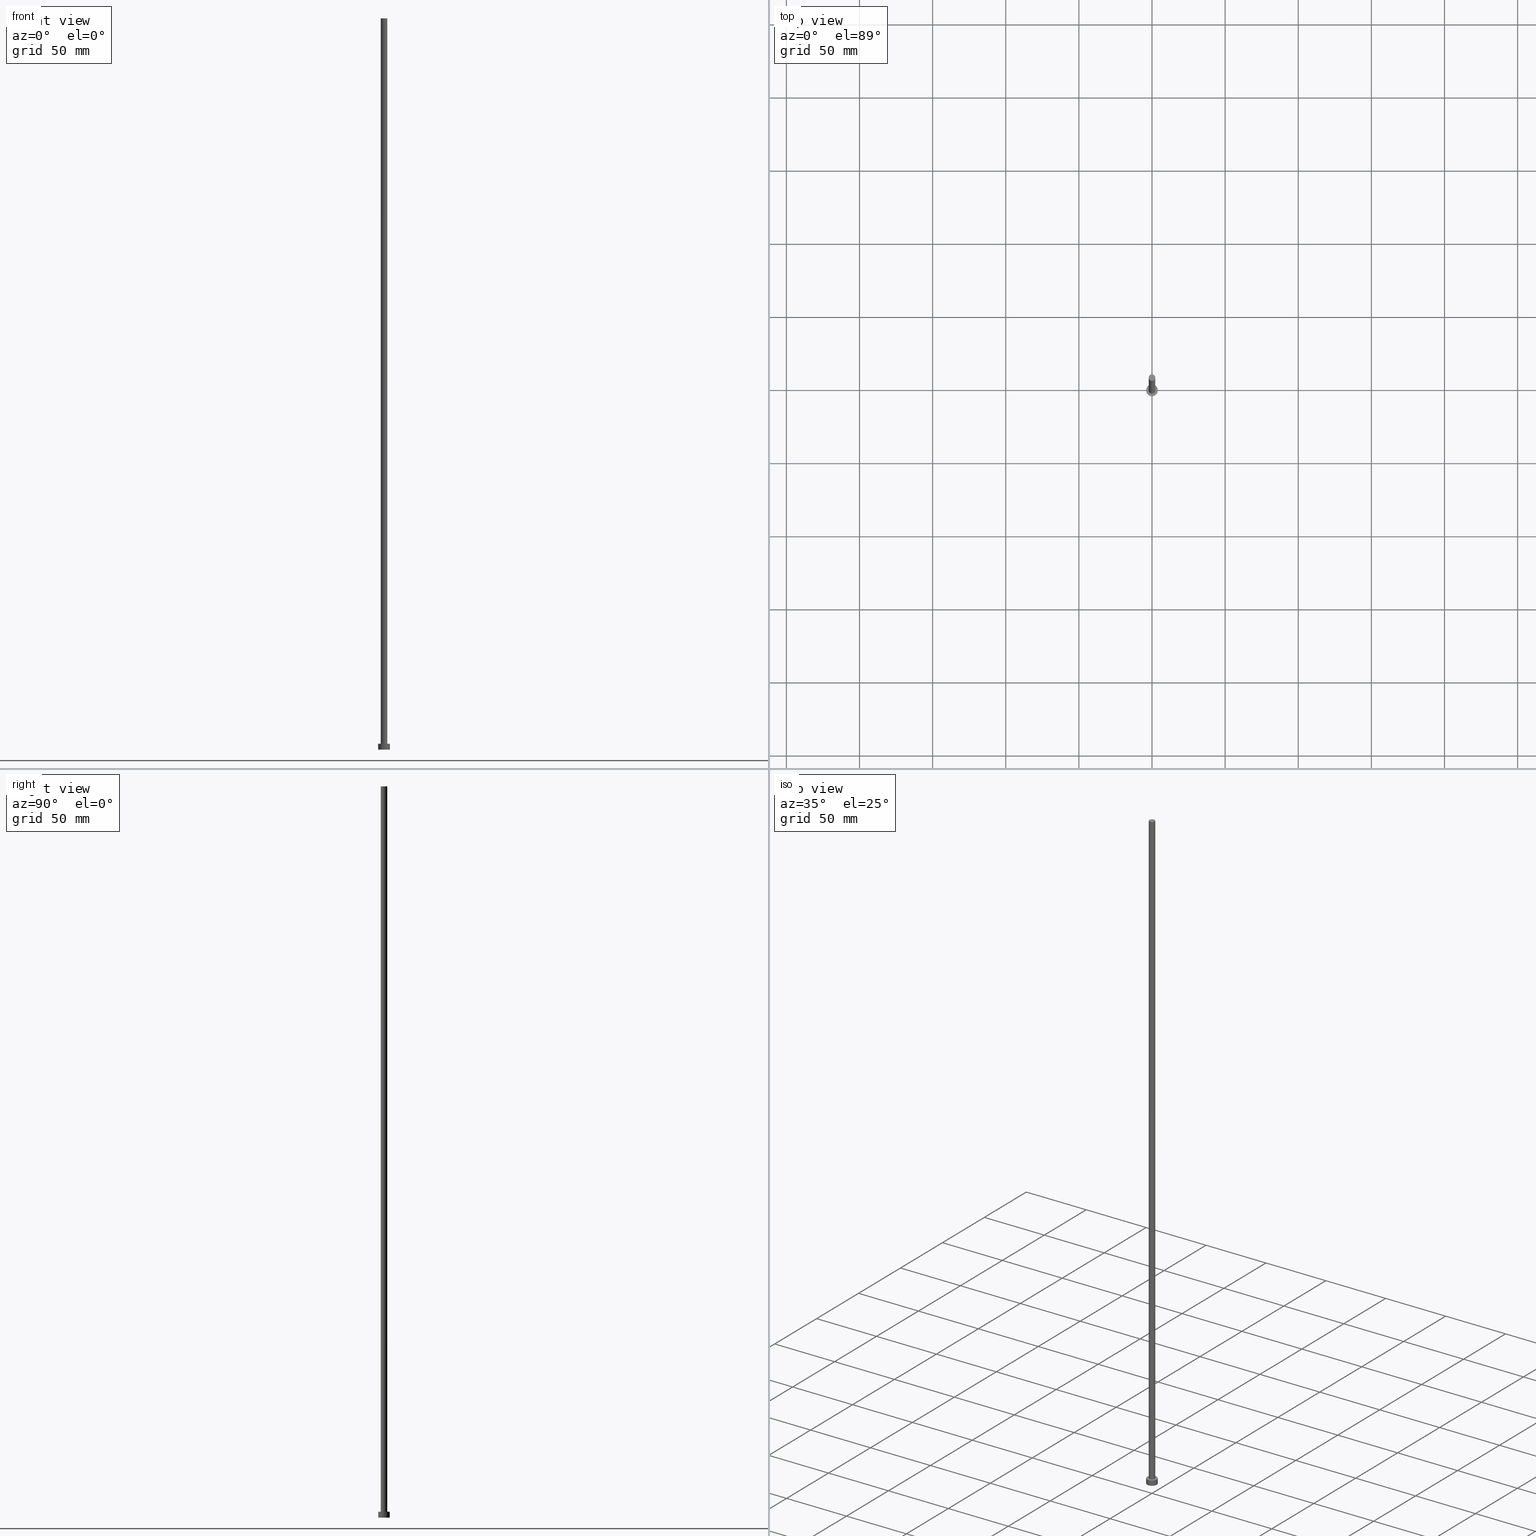
[diagram: canonical four-view strip — front | top / right | iso, engineering-drawing reading convention]
A machine part, canonical four-view strip (front | top / right | iso — engineering-drawing reading convention). The complete STEP part file that produces these views, byte-faithful:
ISO-10303-21;
HEADER;
FILE_DESCRIPTION (( 'STEP AP203' ),
    '1' );
FILE_NAME ('abeb.STEP',
    '2023-02-13T16:19:40',
    ( '' ),
    ( '' ),
    'SwSTEP 2.0',
    'SolidWorks 2019',
    '' );
FILE_SCHEMA (( 'CONFIG_CONTROL_DESIGN' ));
ENDSEC;

DATA;
#1 = CARTESIAN_POINT ( 'NONE',  ( 2.250000000000000000, 2.755455298081544285E-16, 500.0000000000000000 ) ) ;
#2 = DIRECTION ( 'NONE',  ( 1.000000000000000000, 0.000000000000000000, -0.000000000000000000 ) ) ;
#3 = CARTESIAN_POINT ( 'NONE',  ( -4.000000000000000000, 0.000000000000000000, 4.000000000000000000 ) ) ;
#4 = CIRCLE ( 'NONE', #37, 4.000000000000000000 ) ;
#5 = FACE_OUTER_BOUND ( 'NONE', #226, .T. ) ;
#6 = EDGE_CURVE ( 'NONE', #28, #130, #111, .T. ) ;
#7 = VERTEX_POINT ( 'NONE', #132 ) ;
#8 = LOCAL_TIME ( 17, 19, 40.00000000000000000, #112 ) ;
#9 = ORIENTED_EDGE ( 'NONE', *, *, #233, .T. ) ;
#10 = ORIENTED_EDGE ( 'NONE', *, *, #6, .T. ) ;
#11 = DIRECTION ( 'NONE',  ( 1.000000000000000000, 0.000000000000000000, 0.000000000000000000 ) ) ;
#12 = EDGE_CURVE ( 'NONE', #50, #134, #251, .T. ) ;
#13 = APPROVAL_STATUS ( 'not_yet_approved' ) ;
#14 = PRODUCT_DEFINITION ( 'NEZN�M�', '', #123, #249 ) ;
#15 = SHAPE_DEFINITION_REPRESENTATION ( #93, #69 ) ;
#16 = PERSON_AND_ORGANIZATION ( #156, #39 ) ;
#17 = DIRECTION ( 'NONE',  ( 1.000000000000000000, 0.000000000000000000, 0.000000000000000000 ) ) ;
#18 = CIRCLE ( 'NONE', #151, 4.000000000000000000 ) ;
#19 = DATE_AND_TIME ( #97, #168 ) ;
#20 = APPLICATION_CONTEXT ( 'configuration controlled 3d designs of mechanical parts and assemblies' ) ;
#21 = DATE_AND_TIME ( #155, #197 ) ;
#22 = CARTESIAN_POINT ( 'NONE',  ( 0.000000000000000000, 0.000000000000000000, 0.000000000000000000 ) ) ;
#23 = EDGE_CURVE ( 'NONE', #130, #134, #189, .T. ) ;
#24 = DIRECTION ( 'NONE',  ( 0.000000000000000000, 0.000000000000000000, 1.000000000000000000 ) ) ;
#25 = DIRECTION ( 'NONE',  ( -0.000000000000000000, -0.000000000000000000, -1.000000000000000000 ) ) ;
#26 = FACE_OUTER_BOUND ( 'NONE', #146, .T. ) ;
#27 = CARTESIAN_POINT ( 'NONE',  ( 2.250000000000000000, 2.755455298081544285E-16, 4.000000000000000000 ) ) ;
#28 = VERTEX_POINT ( 'NONE', #193 ) ;
#29 = EDGE_LOOP ( 'NONE', ( #202, #53, #62, #48 ) ) ;
#30 = ORIENTED_EDGE ( 'NONE', *, *, #216, .F. ) ;
#31 = VECTOR ( 'NONE', #238, 1000.000000000000000 ) ;
#32 = APPLICATION_PROTOCOL_DEFINITION ( 'international standard', 'config_control_design', 1994, #20 ) ;
#33 = DIRECTION ( 'NONE',  ( 1.000000000000000000, 0.000000000000000000, 0.000000000000000000 ) ) ;
#34 = PERSON_AND_ORGANIZATION ( #156, #39 ) ;
#35 = DIRECTION ( 'NONE',  ( 0.000000000000000000, 0.000000000000000000, 1.000000000000000000 ) ) ;
#36 = AXIS2_PLACEMENT_3D ( 'NONE', #220, #25, #67 ) ;
#37 = AXIS2_PLACEMENT_3D ( 'NONE', #162, #142, #66 ) ;
#38 = CARTESIAN_POINT ( 'NONE',  ( -2.250000000000000000, 0.000000000000000000, 4.000000000000000000 ) ) ;
#39 = ORGANIZATION ( 'NEUR�EN�', 'NEUR�EN�', '' ) ;
#40 = CARTESIAN_POINT ( 'NONE',  ( -4.000000000000000000, 0.000000000000000000, 4.000000000000000000 ) ) ;
#41 = APPROVAL_PERSON_ORGANIZATION ( #16, #73, #58 ) ;
#42 = CYLINDRICAL_SURFACE ( 'NONE', #36, 4.000000000000000000 ) ;
#43 = PRODUCT_RELATED_PRODUCT_CATEGORY ( 'detail', '', ( #186 ) ) ;
#44 = DIRECTION ( 'NONE',  ( -0.000000000000000000, -0.000000000000000000, -1.000000000000000000 ) ) ;
#45 = EDGE_CURVE ( 'NONE', #46, #7, #56, .T. ) ;
#46 = VERTEX_POINT ( 'NONE', #75 ) ;
#47 = UNCERTAINTY_MEASURE_WITH_UNIT (LENGTH_MEASURE( 1.000000000000000082E-05 ), #165, 'distance_accuracy_value', 'NONE');
#48 = ORIENTED_EDGE ( 'NONE', *, *, #45, .T. ) ;
#49 = VECTOR ( 'NONE', #218, 1000.000000000000000 ) ;
#50 = VERTEX_POINT ( 'NONE', #38 ) ;
#51 = EDGE_CURVE ( 'NONE', #145, #217, #18, .T. ) ;
#52 = ORIENTED_EDGE ( 'NONE', *, *, #144, .F. ) ;
#53 = ORIENTED_EDGE ( 'NONE', *, *, #51, .F. ) ;
#54 = DATE_TIME_ROLE ( 'creation_date' ) ;
#55 = EDGE_LOOP ( 'NONE', ( #90, #52 ) ) ;
#56 = CIRCLE ( 'NONE', #135, 4.000000000000000000 ) ;
#57 = APPROVAL_PERSON_ORGANIZATION ( #152, #221, #237 ) ;
#58 = APPROVAL_ROLE ( '' ) ;
#59 = DIRECTION ( 'NONE',  ( 0.000000000000000000, 0.000000000000000000, 1.000000000000000000 ) ) ;
#60 = CALENDAR_DATE ( 2023, 13, 2 ) ;
#61 = DATE_AND_TIME ( #208, #81 ) ;
#62 = ORIENTED_EDGE ( 'NONE', *, *, #214, .T. ) ;
#63 = CARTESIAN_POINT ( 'NONE',  ( 0.000000000000000000, 0.000000000000000000, 4.000000000000000000 ) ) ;
#64 = DIRECTION ( 'NONE',  ( -1.000000000000000000, 0.000000000000000000, 0.000000000000000000 ) ) ;
#65 = DIRECTION ( 'NONE',  ( 1.000000000000000000, 0.000000000000000000, -0.000000000000000000 ) ) ;
#66 = DIRECTION ( 'NONE',  ( 1.000000000000000000, 0.000000000000000000, 0.000000000000000000 ) ) ;
#67 = DIRECTION ( 'NONE',  ( -1.000000000000000000, 0.000000000000000000, 0.000000000000000000 ) ) ;
#68 = EDGE_LOOP ( 'NONE', ( #10, #9 ) ) ;
#69 = ADVANCED_BREP_SHAPE_REPRESENTATION ( 'abeb', ( #184, #86 ), #108 ) ;
#70 = ORIENTED_EDGE ( 'NONE', *, *, #87, .F. ) ;
#71 = PERSON_AND_ORGANIZATION ( #156, #39 ) ;
#72 = PERSON_AND_ORGANIZATION ( #156, #39 ) ;
#73 = APPROVAL ( #131, 'NEUR�EN�' ) ;
#74 = APPROVAL_DATE_TIME ( #252, #235 ) ;
#75 = CARTESIAN_POINT ( 'NONE',  ( -4.000000000000000000, 0.000000000000000000, 0.000000000000000000 ) ) ;
#76 = CLOSED_SHELL ( 'NONE', ( #177, #106, #129, #169, #114, #219, #201 ) ) ;
#77 = FACE_BOUND ( 'NONE', #55, .T. ) ;
#78 = DIRECTION ( 'NONE',  ( 0.000000000000000000, 0.000000000000000000, 1.000000000000000000 ) ) ;
#79 = DIRECTION ( 'NONE',  ( -0.000000000000000000, -0.000000000000000000, -1.000000000000000000 ) ) ;
#80 = AXIS2_PLACEMENT_3D ( 'NONE', #240, #174, #65 ) ;
#81 = LOCAL_TIME ( 17, 19, 40.00000000000000000, #188 ) ;
#82 = LINE ( 'NONE', #122, #49 ) ;
#83 = MECHANICAL_CONTEXT ( 'NONE', #205, 'mechanical' ) ;
#84 = DIRECTION ( 'NONE',  ( 1.000000000000000000, 0.000000000000000000, 0.000000000000000000 ) ) ;
#85 = ORIENTED_EDGE ( 'NONE', *, *, #144, .T. ) ;
#86 = AXIS2_PLACEMENT_3D ( 'NONE', #182, #89, #84 ) ;
#87 = EDGE_CURVE ( 'NONE', #7, #46, #195, .T. ) ;
#88 = ORIENTED_EDGE ( 'NONE', *, *, #214, .F. ) ;
#89 = DIRECTION ( 'NONE',  ( 0.000000000000000000, 0.000000000000000000, 1.000000000000000000 ) ) ;
#90 = ORIENTED_EDGE ( 'NONE', *, *, #12, .F. ) ;
#91 =( NAMED_UNIT ( * ) PLANE_ANGLE_UNIT ( ) SI_UNIT ( $, .RADIAN. ) );
#92 = CC_DESIGN_APPROVAL ( #73, ( #187 ) ) ;
#93 = PRODUCT_DEFINITION_SHAPE ( 'NONE', 'NONE',  #14 ) ;
#94 = CC_DESIGN_DATE_AND_TIME_ASSIGNMENT ( #21, #250, ( #187 ) ) ;
#95 = COORDINATED_UNIVERSAL_TIME_OFFSET ( 1, 0, .AHEAD. ) ;
#96 = CARTESIAN_POINT ( 'NONE',  ( 2.250000000000000000, 2.755455298081544285E-16, 500.0000000000000000 ) ) ;
#97 = CALENDAR_DATE ( 2023, 13, 2 ) ;
#98 = CARTESIAN_POINT ( 'NONE',  ( 0.000000000000000000, 0.000000000000000000, 500.0000000000000000 ) ) ;
#99 = CC_DESIGN_PERSON_AND_ORGANIZATION_ASSIGNMENT ( #34, #115, ( #187 ) ) ;
#100 = DIRECTION ( 'NONE',  ( 0.000000000000000000, 0.000000000000000000, 1.000000000000000000 ) ) ;
#101 = EDGE_CURVE ( 'NONE', #28, #50, #82, .T. ) ;
#102 = PLANE ( 'NONE',  #80 ) ;
#103 = DIRECTION ( 'NONE',  ( 1.000000000000000000, 0.000000000000000000, 0.000000000000000000 ) ) ;
#104 = DIRECTION ( 'NONE',  ( -1.000000000000000000, 0.000000000000000000, 0.000000000000000000 ) ) ;
#105 = LINE ( 'NONE', #173, #228 ) ;
#106 = ADVANCED_FACE ( 'NONE', ( #199 ), #194, .T. ) ;
#107 = PERSON_AND_ORGANIZATION ( #156, #39 ) ;
#108 =( GEOMETRIC_REPRESENTATION_CONTEXT ( 3 ) GLOBAL_UNCERTAINTY_ASSIGNED_CONTEXT ( ( #47 ) ) GLOBAL_UNIT_ASSIGNED_CONTEXT ( ( #165, #91, #167 ) ) REPRESENTATION_CONTEXT ( 'NONE', 'WORKASPACE' ) );
#109 = CC_DESIGN_PERSON_AND_ORGANIZATION_ASSIGNMENT ( #72, #232, ( #14 ) ) ;
#110 = PERSON_AND_ORGANIZATION_ROLE ( 'creator' ) ;
#111 = CIRCLE ( 'NONE', #255, 2.250000000000000000 ) ;
#112 = COORDINATED_UNIVERSAL_TIME_OFFSET ( 1, 0, .AHEAD. ) ;
#113 = ORIENTED_EDGE ( 'NONE', *, *, #12, .T. ) ;
#114 = ADVANCED_FACE ( 'NONE', ( #5 ), #140, .F. ) ;
#115 = PERSON_AND_ORGANIZATION_ROLE ( 'classification_officer' ) ;
#116 = CARTESIAN_POINT ( 'NONE',  ( 0.000000000000000000, 0.000000000000000000, 0.000000000000000000 ) ) ;
#117 = VECTOR ( 'NONE', #79, 1000.000000000000000 ) ;
#118 = APPROVAL_DATE_TIME ( #19, #73 ) ;
#119 = CARTESIAN_POINT ( 'NONE',  ( 0.000000000000000000, 0.000000000000000000, 4.000000000000000000 ) ) ;
#120 = DIRECTION ( 'NONE',  ( 1.000000000000000000, 0.000000000000000000, 0.000000000000000000 ) ) ;
#121 = CARTESIAN_POINT ( 'NONE',  ( 0.000000000000000000, 0.000000000000000000, 500.0000000000000000 ) ) ;
#122 = CARTESIAN_POINT ( 'NONE',  ( -2.250000000000000000, 0.000000000000000000, 500.0000000000000000 ) ) ;
#123 = PRODUCT_DEFINITION_FORMATION_WITH_SPECIFIED_SOURCE ( 'LIBOVOLN�', '', #186, .NOT_KNOWN. ) ;
#124 = ORIENTED_EDGE ( 'NONE', *, *, #23, .F. ) ;
#125 = DIRECTION ( 'NONE',  ( -0.000000000000000000, -0.000000000000000000, -1.000000000000000000 ) ) ;
#126 = ORIENTED_EDGE ( 'NONE', *, *, #141, .T. ) ;
#127 = FACE_OUTER_BOUND ( 'NONE', #246, .T. ) ;
#128 = EDGE_LOOP ( 'NONE', ( #30, #126, #231, #88 ) ) ;
#129 = ADVANCED_FACE ( 'NONE', ( #222 ), #42, .T. ) ;
#130 = VERTEX_POINT ( 'NONE', #1 ) ;
#131 = APPROVAL_STATUS ( 'not_yet_approved' ) ;
#132 = CARTESIAN_POINT ( 'NONE',  ( 4.000000000000000000, 4.898587196589412829E-16, 0.000000000000000000 ) ) ;
#133 = APPROVAL_ROLE ( '' ) ;
#134 = VERTEX_POINT ( 'NONE', #27 ) ;
#135 = AXIS2_PLACEMENT_3D ( 'NONE', #116, #191, #254 ) ;
#136 = CYLINDRICAL_SURFACE ( 'NONE', #229, 2.250000000000000000 ) ;
#137 = CARTESIAN_POINT ( 'NONE',  ( 0.000000000000000000, 0.000000000000000000, 0.000000000000000000 ) ) ;
#138 = CC_DESIGN_DATE_AND_TIME_ASSIGNMENT ( #215, #54, ( #14 ) ) ;
#139 = AXIS2_PLACEMENT_3D ( 'NONE', #242, #44, #64 ) ;
#140 = PLANE ( 'NONE',  #171 ) ;
#141 = EDGE_CURVE ( 'NONE', #217, #7, #105, .T. ) ;
#142 = DIRECTION ( 'NONE',  ( 0.000000000000000000, 0.000000000000000000, 1.000000000000000000 ) ) ;
#143 = CARTESIAN_POINT ( 'NONE',  ( 0.000000000000000000, 0.000000000000000000, 4.000000000000000000 ) ) ;
#144 = EDGE_CURVE ( 'NONE', #134, #50, #178, .T. ) ;
#145 = VERTEX_POINT ( 'NONE', #40 ) ;
#146 = EDGE_LOOP ( 'NONE', ( #207, #181 ) ) ;
#147 = AXIS2_PLACEMENT_3D ( 'NONE', #63, #78, #159 ) ;
#148 = AXIS2_PLACEMENT_3D ( 'NONE', #203, #125, #206 ) ;
#149 = APPLICATION_PROTOCOL_DEFINITION ( 'international standard', 'config_control_design', 1994, #205 ) ;
#150 = COORDINATED_UNIVERSAL_TIME_OFFSET ( 1, 0, .AHEAD. ) ;
#151 = AXIS2_PLACEMENT_3D ( 'NONE', #119, #100, #120 ) ;
#152 = PERSON_AND_ORGANIZATION ( #156, #39 ) ;
#153 = CC_DESIGN_APPROVAL ( #235, ( #14 ) ) ;
#154 = PERSON_AND_ORGANIZATION_ROLE ( 'design_supplier' ) ;
#155 = CALENDAR_DATE ( 2023, 13, 2 ) ;
#156 = PERSON ( 'NEUR�EN�', 'NEUR�EN�', 'NEUR�EN�', ('NEUR�EN�'), ('NEUR�EN�'), ('NEUR�EN�') ) ;
#157 = APPROVAL_PERSON_ORGANIZATION ( #71, #235, #133 ) ;
#158 = PLANE ( 'NONE',  #147 ) ;
#159 = DIRECTION ( 'NONE',  ( 1.000000000000000000, 0.000000000000000000, -0.000000000000000000 ) ) ;
#160 = AXIS2_PLACEMENT_3D ( 'NONE', #143, #224, #103 ) ;
#161 = CC_DESIGN_SECURITY_CLASSIFICATION ( #187, ( #123 ) ) ;
#162 = CARTESIAN_POINT ( 'NONE',  ( 0.000000000000000000, 0.000000000000000000, 4.000000000000000000 ) ) ;
#163 = PERSON_AND_ORGANIZATION_ROLE ( 'design_owner' ) ;
#164 = AXIS2_PLACEMENT_3D ( 'NONE', #180, #245, #11 ) ;
#165 =( LENGTH_UNIT ( ) NAMED_UNIT ( * ) SI_UNIT ( .MILLI., .METRE. ) );
#166 = ORIENTED_EDGE ( 'NONE', *, *, #101, .T. ) ;
#167 =( NAMED_UNIT ( * ) SI_UNIT ( $, .STERADIAN. ) SOLID_ANGLE_UNIT ( ) );
#168 = LOCAL_TIME ( 17, 19, 40.00000000000000000, #190 ) ;
#169 = ADVANCED_FACE ( 'NONE', ( #77, #26 ), #158, .T. ) ;
#170 = PERSON_AND_ORGANIZATION ( #156, #39 ) ;
#171 = AXIS2_PLACEMENT_3D ( 'NONE', #22, #175, #2 ) ;
#172 = CALENDAR_DATE ( 2023, 13, 2 ) ;
#173 = CARTESIAN_POINT ( 'NONE',  ( 4.000000000000000000, 4.898587196589412829E-16, 4.000000000000000000 ) ) ;
#174 = DIRECTION ( 'NONE',  ( 0.000000000000000000, 0.000000000000000000, 1.000000000000000000 ) ) ;
#175 = DIRECTION ( 'NONE',  ( 0.000000000000000000, 0.000000000000000000, 1.000000000000000000 ) ) ;
#176 = LINE ( 'NONE', #3, #117 ) ;
#177 = ADVANCED_FACE ( 'NONE', ( #239 ), #136, .T. ) ;
#178 = CIRCLE ( 'NONE', #160, 2.250000000000000000 ) ;
#179 = LOCAL_TIME ( 17, 19, 40.00000000000000000, #150 ) ;
#180 = CARTESIAN_POINT ( 'NONE',  ( 0.000000000000000000, 0.000000000000000000, 500.0000000000000000 ) ) ;
#181 = ORIENTED_EDGE ( 'NONE', *, *, #216, .T. ) ;
#182 = CARTESIAN_POINT ( 'NONE',  ( 0.000000000000000000, 0.000000000000000000, 0.000000000000000000 ) ) ;
#183 = ORIENTED_EDGE ( 'NONE', *, *, #233, .F. ) ;
#184 = MANIFOLD_SOLID_BREP ( 'P�idat vysunut�m3', #76 ) ;
#185 = CC_DESIGN_PERSON_AND_ORGANIZATION_ASSIGNMENT ( #212, #110, ( #123 ) ) ;
#186 = PRODUCT ( 'abeb', 'abeb', '', ( #83 ) ) ;
#187 = SECURITY_CLASSIFICATION ( '', '', #234 ) ;
#188 = COORDINATED_UNIVERSAL_TIME_OFFSET ( 1, 0, .AHEAD. ) ;
#189 = LINE ( 'NONE', #96, #31 ) ;
#190 = COORDINATED_UNIVERSAL_TIME_OFFSET ( 1, 0, .AHEAD. ) ;
#191 = DIRECTION ( 'NONE',  ( 0.000000000000000000, 0.000000000000000000, 1.000000000000000000 ) ) ;
#192 = APPROVAL_STATUS ( 'not_yet_approved' ) ;
#193 = CARTESIAN_POINT ( 'NONE',  ( -2.250000000000000000, 0.000000000000000000, 500.0000000000000000 ) ) ;
#194 = CYLINDRICAL_SURFACE ( 'NONE', #139, 4.000000000000000000 ) ;
#195 = CIRCLE ( 'NONE', #200, 4.000000000000000000 ) ;
#196 = FACE_OUTER_BOUND ( 'NONE', #68, .T. ) ;
#197 = LOCAL_TIME ( 17, 19, 40.00000000000000000, #95 ) ;
#198 = DIRECTION ( 'NONE',  ( -0.000000000000000000, -0.000000000000000000, -1.000000000000000000 ) ) ;
#199 = FACE_OUTER_BOUND ( 'NONE', #128, .T. ) ;
#200 = AXIS2_PLACEMENT_3D ( 'NONE', #137, #24, #244 ) ;
#201 = ADVANCED_FACE ( 'NONE', ( #196 ), #102, .T. ) ;
#202 = ORIENTED_EDGE ( 'NONE', *, *, #141, .F. ) ;
#203 = CARTESIAN_POINT ( 'NONE',  ( 0.000000000000000000, 0.000000000000000000, 500.0000000000000000 ) ) ;
#204 = ORIENTED_EDGE ( 'NONE', *, *, #6, .F. ) ;
#205 = APPLICATION_CONTEXT ( 'configuration controlled 3d designs of mechanical parts and assemblies' ) ;
#206 = DIRECTION ( 'NONE',  ( -1.000000000000000000, 0.000000000000000000, 0.000000000000000000 ) ) ;
#207 = ORIENTED_EDGE ( 'NONE', *, *, #51, .T. ) ;
#208 = CALENDAR_DATE ( 2023, 13, 2 ) ;
#209 = EDGE_LOOP ( 'NONE', ( #183, #227, #85, #230 ) ) ;
#210 = APPROVAL_DATE_TIME ( #61, #221 ) ;
#211 = CARTESIAN_POINT ( 'NONE',  ( 0.000000000000000000, 0.000000000000000000, 4.000000000000000000 ) ) ;
#212 = PERSON_AND_ORGANIZATION ( #156, #39 ) ;
#213 = ORIENTED_EDGE ( 'NONE', *, *, #45, .F. ) ;
#214 = EDGE_CURVE ( 'NONE', #145, #46, #176, .T. ) ;
#215 = DATE_AND_TIME ( #172, #179 ) ;
#216 = EDGE_CURVE ( 'NONE', #217, #145, #4, .T. ) ;
#217 = VERTEX_POINT ( 'NONE', #223 ) ;
#218 = DIRECTION ( 'NONE',  ( -0.000000000000000000, -0.000000000000000000, -1.000000000000000000 ) ) ;
#219 = ADVANCED_FACE ( 'NONE', ( #127 ), #248, .T. ) ;
#220 = CARTESIAN_POINT ( 'NONE',  ( 0.000000000000000000, 0.000000000000000000, 4.000000000000000000 ) ) ;
#221 = APPROVAL ( #192, 'NEUR�EN�' ) ;
#222 = FACE_OUTER_BOUND ( 'NONE', #29, .T. ) ;
#223 = CARTESIAN_POINT ( 'NONE',  ( 4.000000000000000000, 4.898587196589412829E-16, 4.000000000000000000 ) ) ;
#224 = DIRECTION ( 'NONE',  ( 0.000000000000000000, 0.000000000000000000, 1.000000000000000000 ) ) ;
#225 = CIRCLE ( 'NONE', #164, 2.250000000000000000 ) ;
#226 = EDGE_LOOP ( 'NONE', ( #213, #70 ) ) ;
#227 = ORIENTED_EDGE ( 'NONE', *, *, #23, .T. ) ;
#228 = VECTOR ( 'NONE', #198, 1000.000000000000000 ) ;
#229 = AXIS2_PLACEMENT_3D ( 'NONE', #121, #243, #104 ) ;
#230 = ORIENTED_EDGE ( 'NONE', *, *, #101, .F. ) ;
#231 = ORIENTED_EDGE ( 'NONE', *, *, #87, .T. ) ;
#232 = PERSON_AND_ORGANIZATION_ROLE ( 'creator' ) ;
#233 = EDGE_CURVE ( 'NONE', #130, #28, #225, .T. ) ;
#234 = SECURITY_CLASSIFICATION_LEVEL ( 'unclassified' ) ;
#235 = APPROVAL ( #13, 'NEUR�EN�' ) ;
#236 = CC_DESIGN_APPROVAL ( #221, ( #123 ) ) ;
#237 = APPROVAL_ROLE ( '' ) ;
#238 = DIRECTION ( 'NONE',  ( -0.000000000000000000, -0.000000000000000000, -1.000000000000000000 ) ) ;
#239 = FACE_OUTER_BOUND ( 'NONE', #209, .T. ) ;
#240 = CARTESIAN_POINT ( 'NONE',  ( 0.000000000000000000, 0.000000000000000000, 500.0000000000000000 ) ) ;
#241 = CC_DESIGN_PERSON_AND_ORGANIZATION_ASSIGNMENT ( #107, #163, ( #186 ) ) ;
#242 = CARTESIAN_POINT ( 'NONE',  ( 0.000000000000000000, 0.000000000000000000, 4.000000000000000000 ) ) ;
#243 = DIRECTION ( 'NONE',  ( -0.000000000000000000, -0.000000000000000000, -1.000000000000000000 ) ) ;
#244 = DIRECTION ( 'NONE',  ( 1.000000000000000000, 0.000000000000000000, 0.000000000000000000 ) ) ;
#245 = DIRECTION ( 'NONE',  ( 0.000000000000000000, 0.000000000000000000, 1.000000000000000000 ) ) ;
#246 = EDGE_LOOP ( 'NONE', ( #124, #204, #166, #113 ) ) ;
#247 = AXIS2_PLACEMENT_3D ( 'NONE', #211, #35, #33 ) ;
#248 = CYLINDRICAL_SURFACE ( 'NONE', #148, 2.250000000000000000 ) ;
#249 = DESIGN_CONTEXT ( 'detailed design', #20, 'design' ) ;
#250 = DATE_TIME_ROLE ( 'classification_date' ) ;
#251 = CIRCLE ( 'NONE', #247, 2.250000000000000000 ) ;
#252 = DATE_AND_TIME ( #60, #8 ) ;
#253 = CC_DESIGN_PERSON_AND_ORGANIZATION_ASSIGNMENT ( #170, #154, ( #123 ) ) ;
#254 = DIRECTION ( 'NONE',  ( 1.000000000000000000, 0.000000000000000000, 0.000000000000000000 ) ) ;
#255 = AXIS2_PLACEMENT_3D ( 'NONE', #98, #59, #17 ) ;
ENDSEC;
END-ISO-10303-21;
